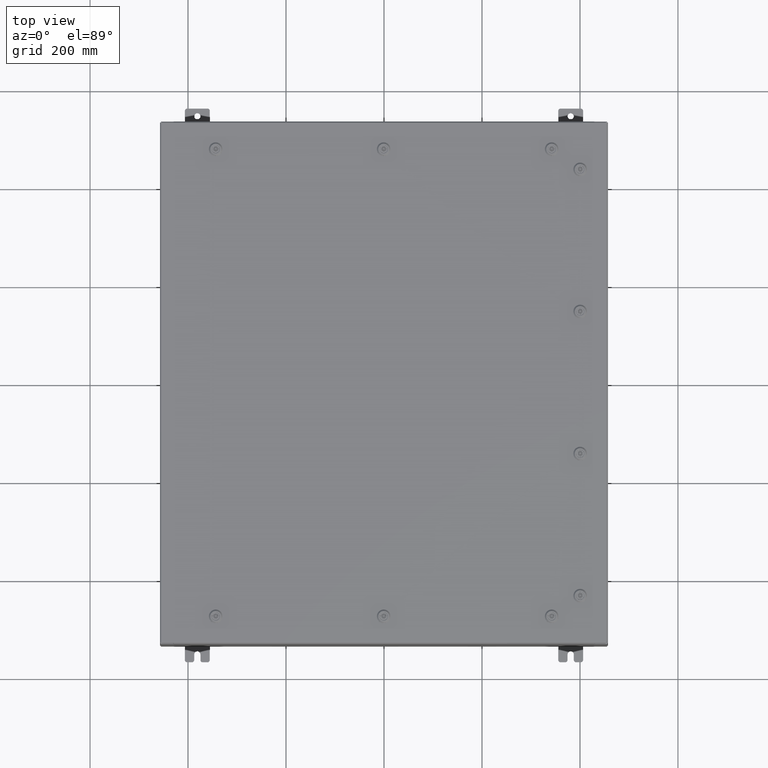
[diagram: clean part render]
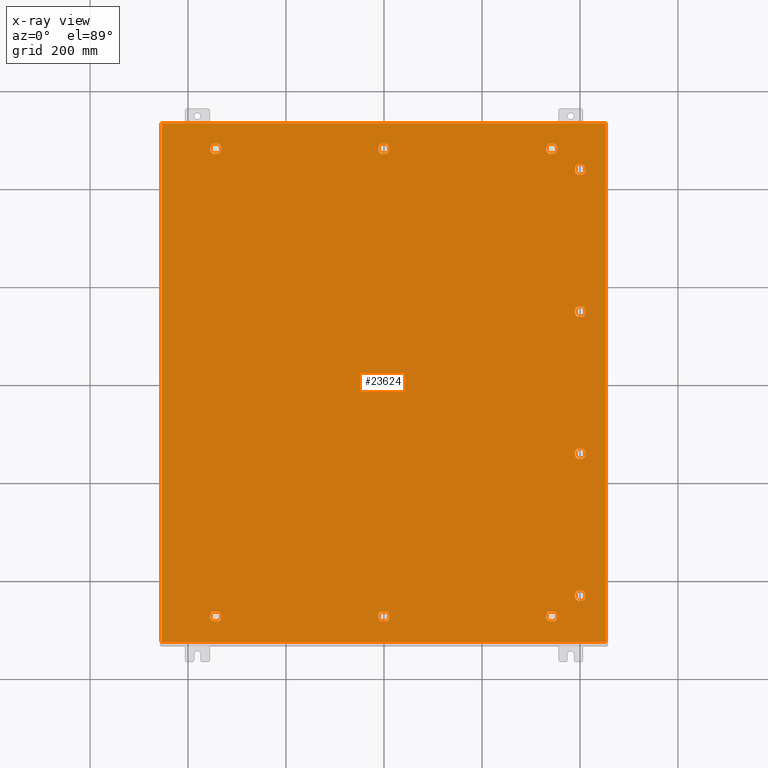
[diagram: x-ray — body ghosted, one internal face saturated and labeled with its STEP entity id]
A machine part, top view, then the same camera in x-ray: the body is ghosted and one INTERNAL B-rep face — a face not visible from any outside direction — is saturated and labeled: STEP entity #23624.
In plain terms, the highlighted planar face has unit normal (0, 0, -1).
Its self-contained STEP definition (entity closure, byte-faithful):
#80 = VERTEX_POINT ( 'NONE', #734 ) ;
#193 = EDGE_CURVE ( 'NONE', #12584, #23892, #28825, .T. ) ;
#390 = VECTOR ( 'NONE', #15010, 39.37007874015748100 ) ;
#453 = AXIS2_PLACEMENT_3D ( 'NONE', #1843, #38882, #7204 ) ;
#551 = CARTESIAN_POINT ( 'NONE',  ( 13.69945237526786900, -19.18279999999999700, -0.07470000000000003000 ) ) ;
#561 = CARTESIAN_POINT ( 'NONE',  ( 17.84979999999999500, -20.84980000000000200, -0.07470000000000000300 ) ) ;
#734 = CARTESIAN_POINT ( 'NONE',  ( -0.1994523752678657700, 19.18279999999999300, -0.07470000000000003000 ) ) ;
#768 = ORIENTED_EDGE ( 'NONE', *, *, #59560, .T. ) ;
#866 = CARTESIAN_POINT ( 'NONE',  ( 13.30054762473209400, 19.18279999999999300, -0.07470000000000003000 ) ) ;
#952 = DIRECTION ( 'NONE',  ( -1.000000000000000000, 0.0000000000000000000, 0.0000000000000000000 ) ) ;
#1178 = EDGE_CURVE ( 'NONE', #3251, #57180, #46143, .T. ) ;
#1322 = FACE_BOUND ( 'NONE', #14052, .T. ) ;
#1347 = CARTESIAN_POINT ( 'NONE',  ( -17.84979999999999800, 20.84980000000000200, -0.07470000000000129300 ) ) ;
#1843 = CARTESIAN_POINT ( 'NONE',  ( 1.529834876451987200E-014, -18.78779999999999700, -0.07470000000000003000 ) ) ;
#1939 = CARTESIAN_POINT ( 'NONE',  ( -13.30054762473210200, 18.39280000000000100, -0.07470000000000003000 ) ) ;
#2352 = VERTEX_POINT ( 'NONE', #37872 ) ;
#2576 = DIRECTION ( 'NONE',  ( -1.000000000000000000, 0.0000000000000000000, 0.0000000000000000000 ) ) ;
#3000 = EDGE_CURVE ( 'NONE', #31051, #3251, #58454, .T. ) ;
#3143 = DIRECTION ( 'NONE',  ( -1.000000000000000000, 0.0000000000000000000, 0.0000000000000000000 ) ) ;
#3191 = VERTEX_POINT ( 'NONE', #21749 ) ;
#3236 = AXIS2_PLACEMENT_3D ( 'NONE', #24119, #61155, #29420 ) ;
#3237 = VECTOR ( 'NONE', #35458, 39.37007874015748100 ) ;
#3251 = VERTEX_POINT ( 'NONE', #16863 ) ;
#3380 = PLANE ( 'NONE',  #66780 ) ;
#3496 = ORIENTED_EDGE ( 'NONE', *, *, #13367, .T. ) ;
#3551 = VECTOR ( 'NONE', #21374, 39.37007874015748100 ) ;
#3881 = EDGE_CURVE ( 'NONE', #16004, #80, #54644, .T. ) ;
#3909 = VECTOR ( 'NONE', #66478, 39.37007874015748100 ) ;
#4025 = AXIS2_PLACEMENT_3D ( 'NONE', #22478, #59516, #27796 ) ;
#4248 = AXIS2_PLACEMENT_3D ( 'NONE', #64449, #32679, #952 ) ;
#4268 = VERTEX_POINT ( 'NONE', #65040 ) ;
#4667 = CIRCLE ( 'NONE', #31220, 0.4424999999999961700 ) ;
#4855 = CARTESIAN_POINT ( 'NONE',  ( 15.78779999999997200, 17.12249999999992400, -0.07470000000000003000 ) ) ;
#4921 = VERTEX_POINT ( 'NONE', #33217 ) ;
#5347 = EDGE_LOOP ( 'NONE', ( #34472, #37090, #46000, #59083 ) ) ;
#5541 = VERTEX_POINT ( 'NONE', #53049 ) ;
#5547 = VECTOR ( 'NONE', #37919, 39.37007874015748100 ) ;
#6015 = CARTESIAN_POINT ( 'NONE',  ( 0.1994523752678993800, -18.39280000000000100, -0.07470000000000003000 ) ) ;
#6030 = EDGE_LOOP ( 'NONE', ( #44376, #59765, #45810, #768, #15175 ) ) ;
#6147 = VERTEX_POINT ( 'NONE', #551 ) ;
#6184 = AXIS2_PLACEMENT_3D ( 'NONE', #54314, #22633, #59667 ) ;
#6667 = DIRECTION ( 'NONE',  ( -1.000000000000000000, 0.0000000000000000000, 0.0000000000000000000 ) ) ;
#6808 = LINE ( 'NONE', #64233, #47338 ) ;
#6891 = LINE ( 'NONE', #53276, #3551 ) ;
#7072 = CARTESIAN_POINT ( 'NONE',  ( 15.78779999999997200, 5.705833333333280200, -0.07470000000000003000 ) ) ;
#7146 = CARTESIAN_POINT ( 'NONE',  ( 13.69945237526787100, -18.39280000000000500, -0.07470000000000003000 ) ) ;
#7204 = DIRECTION ( 'NONE',  ( -1.000000000000000000, 0.0000000000000000000, 0.0000000000000000000 ) ) ;
#7261 = DIRECTION ( 'NONE',  ( -0.0000000000000000000, -0.0000000000000000000, 1.000000000000000000 ) ) ;
#7538 = ORIENTED_EDGE ( 'NONE', *, *, #37289, .T. ) ;
#7640 = EDGE_CURVE ( 'NONE', #11497, #3191, #61863, .T. ) ;
#7688 = DIRECTION ( 'NONE',  ( -1.000000000000000000, 0.0000000000000000000, 0.0000000000000000000 ) ) ;
#7822 = CARTESIAN_POINT ( 'NONE',  ( 13.49999999999998600, -18.78780000000000100, -0.07470000000000003000 ) ) ;
#7877 = VECTOR ( 'NONE', #38383, 39.37007874015748100 ) ;
#8097 = AXIS2_PLACEMENT_3D ( 'NONE', #38934, #7261, #44245 ) ;
#8121 = EDGE_CURVE ( 'NONE', #39548, #33754, #45206, .T. ) ;
#8298 = CARTESIAN_POINT ( 'NONE',  ( 1.529834876451987200E-014, 18.78779999999999700, -0.07470000000000003000 ) ) ;
#8693 = CARTESIAN_POINT ( 'NONE',  ( 15.78779999999997200, 5.705833333333280200, -0.07470000000000003000 ) ) ;
#8712 = DIRECTION ( 'NONE',  ( -1.000000000000000000, 0.0000000000000000000, -0.0000000000000000000 ) ) ;
#9257 = VECTOR ( 'NONE', #28344, 39.37007874015748100 ) ;
#9272 = ORIENTED_EDGE ( 'NONE', *, *, #68685, .T. ) ;
#9658 = EDGE_CURVE ( 'NONE', #37211, #39548, #56709, .T. ) ;
#9901 = CARTESIAN_POINT ( 'NONE',  ( 0.1994523752679067700, -19.18279999999999000, -0.07470000000000003000 ) ) ;
#10008 = VERTEX_POINT ( 'NONE', #54962 ) ;
#10171 = DIRECTION ( 'NONE',  ( -1.000000000000000000, 0.0000000000000000000, 0.0000000000000000000 ) ) ;
#10456 = AXIS2_PLACEMENT_3D ( 'NONE', #19809, #56829, #25133 ) ;
#10503 = ORIENTED_EDGE ( 'NONE', *, *, #9658, .T. ) ;
#10768 = CARTESIAN_POINT ( 'NONE',  ( 15.39279999999998200, -5.910285708601260300, -0.07470000000000003000 ) ) ;
#10794 = VERTEX_POINT ( 'NONE', #6015 ) ;
#10964 = EDGE_CURVE ( 'NONE', #29314, #32702, #60873, .T. ) ;
#11278 = VERTEX_POINT ( 'NONE', #23093 ) ;
#11434 = CARTESIAN_POINT ( 'NONE',  ( -13.30054762473209400, 19.18279999999999000, -0.07470000000000003000 ) ) ;
#11497 = VERTEX_POINT ( 'NONE', #46379 ) ;
#11601 = DIRECTION ( 'NONE',  ( -0.0000000000000000000, -0.0000000000000000000, 1.000000000000000000 ) ) ;
#11766 = CARTESIAN_POINT ( 'NONE',  ( 15.78779999999997200, -5.710833333333369800, -0.07470000000000003000 ) ) ;
#11780 = EDGE_CURVE ( 'NONE', #46576, #4268, #53355, .T. ) ;
#11976 = CARTESIAN_POINT ( 'NONE',  ( 13.30054762473210400, -18.39280000000000500, -0.07470000000000003000 ) ) ;
#12331 = ORIENTED_EDGE ( 'NONE', *, *, #193, .T. ) ;
#12364 = DIRECTION ( 'NONE',  ( -1.000000000000000000, 0.0000000000000000000, 0.0000000000000000000 ) ) ;
#12538 = AXIS2_PLACEMENT_3D ( 'NONE', #22704, #59731, #28014 ) ;
#12584 = VERTEX_POINT ( 'NONE', #32622 ) ;
#12657 = ORIENTED_EDGE ( 'NONE', *, *, #50395, .T. ) ;
#12824 = AXIS2_PLACEMENT_3D ( 'NONE', #7072, #44060, #12364 ) ;
#13120 = DIRECTION ( 'NONE',  ( -1.000000000000000000, 0.0000000000000000000, 0.0000000000000000000 ) ) ;
#13184 = VERTEX_POINT ( 'NONE', #19737 ) ;
#13219 = EDGE_LOOP ( 'NONE', ( #67037, #17417, #15350, #17991, #62679 ) ) ;
#13247 = CARTESIAN_POINT ( 'NONE',  ( 16.18279999999996800, 5.506380958065394200, -0.07470000000000003000 ) ) ;
#13277 = EDGE_CURVE ( 'NONE', #40545, #59435, #33371, .T. ) ;
#13367 = EDGE_CURVE ( 'NONE', #10794, #67055, #6891, .T. ) ;
#13597 = DIRECTION ( 'NONE',  ( -1.000000000000000000, 0.0000000000000000000, 0.0000000000000000000 ) ) ;
#13666 = EDGE_CURVE ( 'NONE', #34534, #2352, #62368, .T. ) ;
#13752 = FACE_OUTER_BOUND ( 'NONE', #66273, .T. ) ;
#13842 = CARTESIAN_POINT ( 'NONE',  ( -17.84980000000000200, -20.84980000000000200, -0.07470000000000000300 ) ) ;
#14003 = DIRECTION ( 'NONE',  ( -1.000000000000000000, 0.0000000000000000000, 0.0000000000000000000 ) ) ;
#14052 = EDGE_LOOP ( 'NONE', ( #46970, #10503, #56533, #34545, #3496 ) ) ;
#14067 = CARTESIAN_POINT ( 'NONE',  ( 15.39279999999997600, -5.511380958065487300, -0.07470000000000003000 ) ) ;
#14117 = CIRCLE ( 'NONE', #36281, 0.4424999999999983400 ) ;
#14308 = AXIS2_PLACEMENT_3D ( 'NONE', #31084, #68174, #36390 ) ;
#14325 = CARTESIAN_POINT ( 'NONE',  ( 16.18279999999996800, -5.910285708601255900, -0.07470000000000003000 ) ) ;
#14440 = LINE ( 'NONE', #21697, #55024 ) ;
#14453 = CARTESIAN_POINT ( 'NONE',  ( 13.30054762473210200, 18.39280000000000500, -0.07470000000000003000 ) ) ;
#14699 = EDGE_CURVE ( 'NONE', #80, #64353, #35764, .T. ) ;
#14707 = CARTESIAN_POINT ( 'NONE',  ( -0.1994523752678689600, -18.39280000000000100, -0.07470000000000003000 ) ) ;
#14799 = VERTEX_POINT ( 'NONE', #42327 ) ;
#14961 = EDGE_LOOP ( 'NONE', ( #9272, #20211, #44586, #19372 ) ) ;
#15010 = DIRECTION ( 'NONE',  ( 1.095739467627835000E-014, -1.000000000000000000, 0.0000000000000000000 ) ) ;
#15175 = ORIENTED_EDGE ( 'NONE', *, *, #29909, .T. ) ;
#15214 = EDGE_CURVE ( 'NONE', #64353, #35681, #28263, .T. ) ;
#15350 = ORIENTED_EDGE ( 'NONE', *, *, #33680, .T. ) ;
#15402 = EDGE_CURVE ( 'NONE', #10008, #52088, #39018, .T. ) ;
#15411 = FACE_BOUND ( 'NONE', #35022, .T. ) ;
#15653 = CIRCLE ( 'NONE', #28403, 0.4424999999999983400 ) ;
#15689 = DIRECTION ( 'NONE',  ( -0.0000000000000000000, -0.0000000000000000000, 1.000000000000000000 ) ) ;
#15779 = CARTESIAN_POINT ( 'NONE',  ( 15.39279999999998200, 16.92304762473203500, -0.07470000000000000300 ) ) ;
#16004 = VERTEX_POINT ( 'NONE', #47052 ) ;
#16135 = VECTOR ( 'NONE', #68052, 39.37007874015748100 ) ;
#16218 = EDGE_CURVE ( 'NONE', #17920, #67663, #14117, .T. ) ;
#16448 = CARTESIAN_POINT ( 'NONE',  ( -13.69945237526787100, -18.39280000000000800, -0.07470000000000003000 ) ) ;
#16785 = VECTOR ( 'NONE', #23071, 39.37007874015748100 ) ;
#16863 = CARTESIAN_POINT ( 'NONE',  ( 15.39279999999997600, 17.32195237526780600, -0.07470000000000003000 ) ) ;
#17004 = EDGE_CURVE ( 'NONE', #14799, #46886, #65391, .T. ) ;
#17077 = DIRECTION ( 'NONE',  ( -1.000000000000000000, 0.0000000000000000000, 0.0000000000000000000 ) ) ;
#17082 = FACE_BOUND ( 'NONE', #27344, .T. ) ;
#17325 = LINE ( 'NONE', #67227, #3237 ) ;
#17397 = ORIENTED_EDGE ( 'NONE', *, *, #18330, .T. ) ;
#17417 = ORIENTED_EDGE ( 'NONE', *, *, #28820, .T. ) ;
#17894 = ORIENTED_EDGE ( 'NONE', *, *, #13277, .T. ) ;
#17920 = VERTEX_POINT ( 'NONE', #60294 ) ;
#17991 = ORIENTED_EDGE ( 'NONE', *, *, #37504, .T. ) ;
#18121 = CARTESIAN_POINT ( 'NONE',  ( 15.78779999999997200, -17.12750000000001900, -0.07470000000000003000 ) ) ;
#18330 = EDGE_CURVE ( 'NONE', #40990, #60419, #15653, .T. ) ;
#19076 = DIRECTION ( 'NONE',  ( 5.478697338139235000E-015, 1.000000000000000000, 0.0000000000000000000 ) ) ;
#19297 = VECTOR ( 'NONE', #37074, 39.37007874015748100 ) ;
#19372 = ORIENTED_EDGE ( 'NONE', *, *, #30451, .T. ) ;
#19405 = VECTOR ( 'NONE', #19076, 39.37007874015748100 ) ;
#19630 = LINE ( 'NONE', #866, #5547 ) ;
#19737 = CARTESIAN_POINT ( 'NONE',  ( 13.94249999999998500, -18.78780000000000100, -0.07470000000000003000 ) ) ;
#19789 = CARTESIAN_POINT ( 'NONE',  ( 17.84979999999999500, 20.84980000000000200, -0.07470000000000000300 ) ) ;
#19809 = CARTESIAN_POINT ( 'NONE',  ( -13.49999999999998600, 18.78779999999999700, -0.07470000000000003000 ) ) ;
#19903 = DIRECTION ( 'NONE',  ( 1.000000000000000000, -1.095739467627832000E-014, 0.0000000000000000000 ) ) ;
#20199 = CARTESIAN_POINT ( 'NONE',  ( -13.30054762473210400, -18.39280000000000800, -0.07470000000000003000 ) ) ;
#20211 = ORIENTED_EDGE ( 'NONE', *, *, #24959, .T. ) ;
#20299 = EDGE_CURVE ( 'NONE', #57180, #48181, #58584, .T. ) ;
#20700 = CARTESIAN_POINT ( 'NONE',  ( -13.05749999999998900, 18.78779999999999700, -0.07470000000000003000 ) ) ;
#21041 = VECTOR ( 'NONE', #31691, 39.37007874015748100 ) ;
#21155 = LINE ( 'NONE', #46707, #390 ) ;
#21374 = DIRECTION ( 'NONE',  ( -1.000000000000000000, 0.0000000000000000000, 0.0000000000000000000 ) ) ;
#21697 = CARTESIAN_POINT ( 'NONE',  ( 16.18279999999996800, 16.92304762473203900, -0.07470000000000003000 ) ) ;
#21749 = CARTESIAN_POINT ( 'NONE',  ( 16.18279999999996800, -17.32695237526790400, -0.07470000000000003000 ) ) ;
#21846 = DIRECTION ( 'NONE',  ( 5.478697338139219300E-015, 1.000000000000000000, 0.0000000000000000000 ) ) ;
#22187 = CARTESIAN_POINT ( 'NONE',  ( 17.84979999999999500, 20.84980000000000500, -0.07469999999999804600 ) ) ;
#22340 = EDGE_CURVE ( 'NONE', #13184, #34534, #39370, .T. ) ;
#22478 = CARTESIAN_POINT ( 'NONE',  ( 1.529834876451987200E-014, -18.78779999999999700, -0.07470000000000003000 ) ) ;
#22633 = DIRECTION ( 'NONE',  ( -0.0000000000000000000, -0.0000000000000000000, 1.000000000000000000 ) ) ;
#22670 = CARTESIAN_POINT ( 'NONE',  ( 0.1994523752679070700, -19.18279999999999000, -0.07470000000000000300 ) ) ;
#22704 = CARTESIAN_POINT ( 'NONE',  ( 13.49999999999998600, -18.78780000000000100, -0.07470000000000003000 ) ) ;
#22718 = CARTESIAN_POINT ( 'NONE',  ( 16.18279999999996800, -5.910285708601255900, -0.07470000000000003000 ) ) ;
#23071 = DIRECTION ( 'NONE',  ( 1.000000000000000000, 0.0000000000000000000, 0.0000000000000000000 ) ) ;
#23093 = CARTESIAN_POINT ( 'NONE',  ( 15.39279999999997600, -16.92804762473213700, -0.07470000000000003000 ) ) ;
#23306 = CARTESIAN_POINT ( 'NONE',  ( 0.1994523752679067700, 19.18279999999999000, -0.07470000000000003000 ) ) ;
#23467 = DIRECTION ( 'NONE',  ( -1.000000000000000000, 0.0000000000000000000, 0.0000000000000000000 ) ) ;
#23541 = EDGE_CURVE ( 'NONE', #23551, #12584, #4667, .T. ) ;
#23551 = VERTEX_POINT ( 'NONE', #24231 ) ;
#23624 = ADVANCED_FACE ( 'NONE', ( #17082, #43565, #48537, #61011, #29506, #15411, #1322, #55996, #41899, #27850, #13752 ), #3380, .T. ) ;
#23892 = VERTEX_POINT ( 'NONE', #37349 ) ;
#24052 = EDGE_CURVE ( 'NONE', #46886, #31702, #55146, .T. ) ;
#24119 = CARTESIAN_POINT ( 'NONE',  ( 13.49999999999998600, -18.78780000000000100, -0.07470000000000003000 ) ) ;
#24144 = CIRCLE ( 'NONE', #14308, 0.4424999999999983400 ) ;
#24231 = CARTESIAN_POINT ( 'NONE',  ( 13.69945237526786900, 18.39280000000000500, -0.07470000000000003000 ) ) ;
#24609 = CARTESIAN_POINT ( 'NONE',  ( 15.78779999999997200, 17.12249999999992400, -0.07470000000000003000 ) ) ;
#24627 = VERTEX_POINT ( 'NONE', #14325 ) ;
#24958 = CARTESIAN_POINT ( 'NONE',  ( 0.1994523752678995500, 18.39280000000000100, -0.07470000000000003000 ) ) ;
#24959 = EDGE_CURVE ( 'NONE', #54788, #17920, #21155, .T. ) ;
#25133 = DIRECTION ( 'NONE',  ( -1.000000000000000000, 0.0000000000000000000, 0.0000000000000000000 ) ) ;
#25607 = CARTESIAN_POINT ( 'NONE',  ( -13.05749999999999000, -18.78780000000000400, -0.07470000000000003000 ) ) ;
#25754 = EDGE_CURVE ( 'NONE', #4268, #32452, #47548, .T. ) ;
#25875 = ORIENTED_EDGE ( 'NONE', *, *, #14699, .T. ) ;
#26381 = AXIS2_PLACEMENT_3D ( 'NONE', #7822, #44818, #13120 ) ;
#26737 = DIRECTION ( 'NONE',  ( 1.095739467627835000E-014, -1.000000000000000000, 0.0000000000000000000 ) ) ;
#27025 = DIRECTION ( 'NONE',  ( 5.478697338139219300E-015, 1.000000000000000000, 0.0000000000000000000 ) ) ;
#27106 = CARTESIAN_POINT ( 'NONE',  ( 1.529834876451987200E-014, -18.78779999999999700, -0.07470000000000003000 ) ) ;
#27344 = EDGE_LOOP ( 'NONE', ( #41278, #46867, #47482, #33881 ) ) ;
#27570 = AXIS2_PLACEMENT_3D ( 'NONE', #27106, #11601, #7688 ) ;
#27796 = DIRECTION ( 'NONE',  ( -1.000000000000000000, 0.0000000000000000000, 0.0000000000000000000 ) ) ;
#27850 = FACE_BOUND ( 'NONE', #56121, .T. ) ;
#28014 = DIRECTION ( 'NONE',  ( -1.000000000000000000, 0.0000000000000000000, 0.0000000000000000000 ) ) ;
#28205 = CARTESIAN_POINT ( 'NONE',  ( 15.78779999999997200, -17.12750000000001900, -0.07470000000000003000 ) ) ;
#28263 = LINE ( 'NONE', #24958, #42320 ) ;
#28344 = DIRECTION ( 'NONE',  ( 1.000000000000000000, 0.0000000000000000000, 0.0000000000000000000 ) ) ;
#28371 = VERTEX_POINT ( 'NONE', #19789 ) ;
#28403 = AXIS2_PLACEMENT_3D ( 'NONE', #47373, #15689, #52701 ) ;
#28702 = EDGE_CURVE ( 'NONE', #67608, #11278, #40709, .T. ) ;
#28820 = EDGE_CURVE ( 'NONE', #32452, #37554, #63962, .T. ) ;
#28825 = CIRCLE ( 'NONE', #55370, 0.4424999999999961700 ) ;
#28843 = CARTESIAN_POINT ( 'NONE',  ( -13.49999999999998600, -18.78780000000000400, -0.07470000000000003000 ) ) ;
#28995 = ORIENTED_EDGE ( 'NONE', *, *, #60619, .T. ) ;
#29314 = VERTEX_POINT ( 'NONE', #47474 ) ;
#29420 = DIRECTION ( 'NONE',  ( -1.000000000000000000, 0.0000000000000000000, 0.0000000000000000000 ) ) ;
#29506 = FACE_BOUND ( 'NONE', #6030, .T. ) ;
#29531 = CARTESIAN_POINT ( 'NONE',  ( -0.1994523752678689600, 18.39280000000000100, -0.07470000000000003000 ) ) ;
#29903 = DIRECTION ( 'NONE',  ( -1.000000000000000000, 0.0000000000000000000, 0.0000000000000000000 ) ) ;
#29909 = EDGE_CURVE ( 'NONE', #49626, #6147, #65875, .T. ) ;
#30117 = AXIS2_PLACEMENT_3D ( 'NONE', #66076, #34283, #2576 ) ;
#30405 = DIRECTION ( 'NONE',  ( 1.095739467627837900E-014, -1.000000000000000000, 0.0000000000000000000 ) ) ;
#30451 = EDGE_CURVE ( 'NONE', #67663, #4921, #45875, .T. ) ;
#30938 = AXIS2_PLACEMENT_3D ( 'NONE', #62995, #31247, #68334 ) ;
#31051 = VERTEX_POINT ( 'NONE', #54905 ) ;
#31084 = CARTESIAN_POINT ( 'NONE',  ( -13.49999999999998600, 18.78779999999999700, -0.07470000000000003000 ) ) ;
#31220 = AXIS2_PLACEMENT_3D ( 'NONE', #66631, #34841, #3143 ) ;
#31247 = DIRECTION ( 'NONE',  ( -0.0000000000000000000, -0.0000000000000000000, 1.000000000000000000 ) ) ;
#31389 = CARTESIAN_POINT ( 'NONE',  ( -13.49999999999998600, -18.78780000000000400, -0.07470000000000003000 ) ) ;
#31691 = DIRECTION ( 'NONE',  ( 0.0000000000000000000, 1.000000000000000000, 0.0000000000000000000 ) ) ;
#31702 = VERTEX_POINT ( 'NONE', #48478 ) ;
#31847 = ORIENTED_EDGE ( 'NONE', *, *, #10964, .F. ) ;
#32022 = CARTESIAN_POINT ( 'NONE',  ( -13.30054762473209500, -19.18279999999999700, -0.07470000000000003000 ) ) ;
#32452 = VERTEX_POINT ( 'NONE', #38640 ) ;
#32622 = CARTESIAN_POINT ( 'NONE',  ( 13.94249999999998300, 18.78780000000000100, -0.07470000000000003000 ) ) ;
#32679 = DIRECTION ( 'NONE',  ( -0.0000000000000000000, -0.0000000000000000000, 1.000000000000000000 ) ) ;
#32702 = VERTEX_POINT ( 'NONE', #13842 ) ;
#33048 = EDGE_CURVE ( 'NONE', #3191, #67608, #6808, .T. ) ;
#33058 = AXIS2_PLACEMENT_3D ( 'NONE', #28843, #65926, #34143 ) ;
#33217 = CARTESIAN_POINT ( 'NONE',  ( 16.18279999999997200, 5.905285708601162800, -0.07470000000000003000 ) ) ;
#33371 = LINE ( 'NONE', #20199, #19297 ) ;
#33504 = VECTOR ( 'NONE', #37324, 39.37007874015748100 ) ;
#33515 = DIRECTION ( 'NONE',  ( -1.000000000000000000, 0.0000000000000000000, 0.0000000000000000000 ) ) ;
#33566 = CIRCLE ( 'NONE', #12538, 0.4424999999999961700 ) ;
#33680 = EDGE_CURVE ( 'NONE', #37554, #39339, #24144, .T. ) ;
#33754 = VERTEX_POINT ( 'NONE', #43749 ) ;
#33881 = ORIENTED_EDGE ( 'NONE', *, *, #53188, .T. ) ;
#33908 = DIRECTION ( 'NONE',  ( -1.000000000000000000, 1.095739467627836300E-014, 0.0000000000000000000 ) ) ;
#33934 = CIRCLE ( 'NONE', #453, 0.4424999999999969000 ) ;
#34143 = DIRECTION ( 'NONE',  ( -1.000000000000000000, 0.0000000000000000000, 0.0000000000000000000 ) ) ;
#34152 = VECTOR ( 'NONE', #6667, 39.37007874015748100 ) ;
#34283 = DIRECTION ( 'NONE',  ( -0.0000000000000000000, -0.0000000000000000000, 1.000000000000000000 ) ) ;
#34472 = ORIENTED_EDGE ( 'NONE', *, *, #28702, .T. ) ;
#34534 = VERTEX_POINT ( 'NONE', #7146 ) ;
#34545 = ORIENTED_EDGE ( 'NONE', *, *, #44988, .T. ) ;
#34599 = CIRCLE ( 'NONE', #37361, 0.4424999999999983400 ) ;
#34841 = DIRECTION ( 'NONE',  ( -0.0000000000000000000, -0.0000000000000000000, 1.000000000000000000 ) ) ;
#35022 = EDGE_LOOP ( 'NONE', ( #60513, #28995, #57078, #7538, #17894 ) ) ;
#35458 = DIRECTION ( 'NONE',  ( 1.000000000000000000, -0.0000000000000000000, -0.0000000000000000000 ) ) ;
#35681 = VERTEX_POINT ( 'NONE', #56326 ) ;
#35764 = CIRCLE ( 'NONE', #30938, 0.4424999999999969000 ) ;
#35983 = CARTESIAN_POINT ( 'NONE',  ( -13.30054762473210200, 18.39280000000000100, -0.07470000000000000300 ) ) ;
#36201 = EDGE_CURVE ( 'NONE', #6147, #13184, #65435, .T. ) ;
#36281 = AXIS2_PLACEMENT_3D ( 'NONE', #8693, #45691, #14003 ) ;
#36297 = ORIENTED_EDGE ( 'NONE', *, *, #3881, .T. ) ;
#36390 = DIRECTION ( 'NONE',  ( -1.000000000000000000, 0.0000000000000000000, 0.0000000000000000000 ) ) ;
#36493 = VERTEX_POINT ( 'NONE', #561 ) ;
#36499 = ORIENTED_EDGE ( 'NONE', *, *, #17004, .T. ) ;
#36515 = ORIENTED_EDGE ( 'NONE', *, *, #45012, .T. ) ;
#36553 = VERTEX_POINT ( 'NONE', #37605 ) ;
#36698 = DIRECTION ( 'NONE',  ( -1.000000000000000000, 0.0000000000000000000, 0.0000000000000000000 ) ) ;
#37074 = DIRECTION ( 'NONE',  ( -1.000000000000000000, 0.0000000000000000000, 0.0000000000000000000 ) ) ;
#37090 = ORIENTED_EDGE ( 'NONE', *, *, #62495, .T. ) ;
#37211 = VERTEX_POINT ( 'NONE', #60120 ) ;
#37289 = EDGE_CURVE ( 'NONE', #52088, #40545, #65375, .T. ) ;
#37324 = DIRECTION ( 'NONE',  ( 1.000000000000000000, 1.095739467627832000E-014, 0.0000000000000000000 ) ) ;
#37349 = CARTESIAN_POINT ( 'NONE',  ( 13.69945237526786700, 19.18279999999999700, -0.07470000000000003000 ) ) ;
#37361 = AXIS2_PLACEMENT_3D ( 'NONE', #11766, #48766, #17077 ) ;
#37504 = EDGE_CURVE ( 'NONE', #39339, #46576, #57003, .T. ) ;
#37554 = VERTEX_POINT ( 'NONE', #35983 ) ;
#37605 = CARTESIAN_POINT ( 'NONE',  ( 0.4425000000000126100, 18.78779999999999700, -0.07470000000000003000 ) ) ;
#37872 = CARTESIAN_POINT ( 'NONE',  ( 13.30054762473210400, -18.39280000000000500, -0.07470000000000000300 ) ) ;
#37919 = DIRECTION ( 'NONE',  ( -1.000000000000000000, -1.095739467627832000E-014, 0.0000000000000000000 ) ) ;
#38383 = DIRECTION ( 'NONE',  ( 0.0000000000000000000, -1.000000000000000000, 0.0000000000000000000 ) ) ;
#38640 = CARTESIAN_POINT ( 'NONE',  ( -13.69945237526786900, 18.39280000000000100, -0.07470000000000003000 ) ) ;
#38695 = DIRECTION ( 'NONE',  ( -0.0000000000000000000, -0.0000000000000000000, 1.000000000000000000 ) ) ;
#38882 = DIRECTION ( 'NONE',  ( -0.0000000000000000000, -0.0000000000000000000, 1.000000000000000000 ) ) ;
#38885 = ORIENTED_EDGE ( 'NONE', *, *, #64337, .T. ) ;
#38934 = CARTESIAN_POINT ( 'NONE',  ( 1.529834876451987200E-014, 18.78779999999999700, -0.07470000000000003000 ) ) ;
#39018 = CIRCLE ( 'NONE', #46016, 0.4424999999999961700 ) ;
#39278 = VECTOR ( 'NONE', #64475, 39.37007874015748100 ) ;
#39339 = VERTEX_POINT ( 'NONE', #20700 ) ;
#39370 = CIRCLE ( 'NONE', #3236, 0.4424999999999983400 ) ;
#39548 = VERTEX_POINT ( 'NONE', #22670 ) ;
#39814 = CIRCLE ( 'NONE', #12824, 0.4424999999999983400 ) ;
#40175 = DIRECTION ( 'NONE',  ( 0.0000000000000000000, 0.0000000000000000000, -1.000000000000000000 ) ) ;
#40545 = VERTEX_POINT ( 'NONE', #60977 ) ;
#40580 = VECTOR ( 'NONE', #59745, 39.37007874015748100 ) ;
#40709 = CIRCLE ( 'NONE', #63809, 0.4424999999999983400 ) ;
#40798 = LINE ( 'NONE', #62149, #67377 ) ;
#40990 = VERTEX_POINT ( 'NONE', #60648 ) ;
#41044 = VECTOR ( 'NONE', #26737, 39.37007874015748100 ) ;
#41278 = ORIENTED_EDGE ( 'NONE', *, *, #3000, .T. ) ;
#41445 = CARTESIAN_POINT ( 'NONE',  ( 15.39279999999997600, 5.905285708601162800, -0.07470000000000003000 ) ) ;
#41845 = EDGE_LOOP ( 'NONE', ( #36499, #45574, #61377, #36515 ) ) ;
#41862 = DIRECTION ( 'NONE',  ( -0.0000000000000000000, -0.0000000000000000000, 1.000000000000000000 ) ) ;
#41899 = FACE_BOUND ( 'NONE', #13219, .T. ) ;
#42095 = CIRCLE ( 'NONE', #8097, 0.4424999999999973400 ) ;
#42320 = VECTOR ( 'NONE', #51300, 39.37007874015748100 ) ;
#42327 = CARTESIAN_POINT ( 'NONE',  ( 16.18279999999997200, -5.511380958065487300, -0.07470000000000003000 ) ) ;
#42576 = ORIENTED_EDGE ( 'NONE', *, *, #23541, .T. ) ;
#43205 = ORIENTED_EDGE ( 'NONE', *, *, #66285, .T. ) ;
#43565 = FACE_BOUND ( 'NONE', #14961, .T. ) ;
#43749 = CARTESIAN_POINT ( 'NONE',  ( 0.4425000000000126100, -18.78779999999999700, -0.07470000000000003000 ) ) ;
#44060 = DIRECTION ( 'NONE',  ( -0.0000000000000000000, -0.0000000000000000000, 1.000000000000000000 ) ) ;
#44245 = DIRECTION ( 'NONE',  ( -1.000000000000000000, 4.938934225833725800E-015, 0.0000000000000000000 ) ) ;
#44376 = ORIENTED_EDGE ( 'NONE', *, *, #36201, .T. ) ;
#44489 = CARTESIAN_POINT ( 'NONE',  ( 16.18279999999997200, -16.92804762473213400, -0.07470000000000003000 ) ) ;
#44586 = ORIENTED_EDGE ( 'NONE', *, *, #16218, .T. ) ;
#44818 = DIRECTION ( 'NONE',  ( -0.0000000000000000000, -0.0000000000000000000, 1.000000000000000000 ) ) ;
#44988 = EDGE_CURVE ( 'NONE', #33754, #10794, #65490, .T. ) ;
#45012 = EDGE_CURVE ( 'NONE', #24627, #14799, #63811, .T. ) ;
#45083 = EDGE_CURVE ( 'NONE', #67055, #37211, #33934, .T. ) ;
#45206 = CIRCLE ( 'NONE', #27570, 0.4424999999999973400 ) ;
#45301 = DIRECTION ( 'NONE',  ( -0.0000000000000000000, -0.0000000000000000000, 1.000000000000000000 ) ) ;
#45574 = ORIENTED_EDGE ( 'NONE', *, *, #24052, .T. ) ;
#45691 = DIRECTION ( 'NONE',  ( -0.0000000000000000000, -0.0000000000000000000, 1.000000000000000000 ) ) ;
#45810 = ORIENTED_EDGE ( 'NONE', *, *, #13666, .T. ) ;
#45875 = LINE ( 'NONE', #56101, #19405 ) ;
#46000 = ORIENTED_EDGE ( 'NONE', *, *, #7640, .T. ) ;
#46016 = AXIS2_PLACEMENT_3D ( 'NONE', #31389, #68491, #36698 ) ;
#46143 = LINE ( 'NONE', #61343, #3909 ) ;
#46379 = CARTESIAN_POINT ( 'NONE',  ( 15.39279999999998200, -17.32695237526790800, -0.07470000000000000300 ) ) ;
#46576 = VERTEX_POINT ( 'NONE', #47100 ) ;
#46706 = EDGE_CURVE ( 'NONE', #36553, #16004, #42095, .T. ) ;
#46707 = CARTESIAN_POINT ( 'NONE',  ( 15.39279999999998200, 5.506380958065389700, -0.07470000000000003000 ) ) ;
#46867 = ORIENTED_EDGE ( 'NONE', *, *, #1178, .T. ) ;
#46886 = VERTEX_POINT ( 'NONE', #14067 ) ;
#46970 = ORIENTED_EDGE ( 'NONE', *, *, #45083, .T. ) ;
#47052 = CARTESIAN_POINT ( 'NONE',  ( 0.1994523752679069900, 19.18279999999999000, -0.07470000000000003000 ) ) ;
#47100 = CARTESIAN_POINT ( 'NONE',  ( -13.30054762473209400, 19.18279999999999000, -0.07470000000000003000 ) ) ;
#47338 = VECTOR ( 'NONE', #21846, 39.37007874015748100 ) ;
#47373 = CARTESIAN_POINT ( 'NONE',  ( 13.49999999999998600, 18.78780000000000100, -0.07470000000000003000 ) ) ;
#47474 = CARTESIAN_POINT ( 'NONE',  ( -17.84979999999999800, 20.84980000000000200, -0.07470000000000000300 ) ) ;
#47482 = ORIENTED_EDGE ( 'NONE', *, *, #20299, .T. ) ;
#47505 = EDGE_CURVE ( 'NONE', #28371, #29314, #48675, .T. ) ;
#47531 = EDGE_CURVE ( 'NONE', #31702, #24627, #34599, .T. ) ;
#47548 = CIRCLE ( 'NONE', #4248, 0.4424999999999961700 ) ;
#48181 = VERTEX_POINT ( 'NONE', #63349 ) ;
#48478 = CARTESIAN_POINT ( 'NONE',  ( 15.39279999999998200, -5.910285708601261200, -0.07470000000000000300 ) ) ;
#48537 = FACE_BOUND ( 'NONE', #41845, .T. ) ;
#48675 = LINE ( 'NONE', #22187, #62814 ) ;
#48744 = EDGE_LOOP ( 'NONE', ( #42576, #12331, #12657, #17397, #38885 ) ) ;
#48766 = DIRECTION ( 'NONE',  ( -0.0000000000000000000, -0.0000000000000000000, 1.000000000000000000 ) ) ;
#49157 = LINE ( 'NONE', #63446, #21041 ) ;
#49408 = CARTESIAN_POINT ( 'NONE',  ( 13.30054762473210200, 18.39280000000000500, -0.07470000000000003000 ) ) ;
#49626 = VERTEX_POINT ( 'NONE', #62470 ) ;
#49950 = CIRCLE ( 'NONE', #6184, 0.4424999999999983400 ) ;
#50065 = VECTOR ( 'NONE', #19903, 39.37007874015748100 ) ;
#50174 = AXIS2_PLACEMENT_3D ( 'NONE', #24609, #61631, #29903 ) ;
#50287 = ORIENTED_EDGE ( 'NONE', *, *, #15214, .T. ) ;
#50395 = EDGE_CURVE ( 'NONE', #23892, #40990, #19630, .T. ) ;
#50705 = ORIENTED_EDGE ( 'NONE', *, *, #61328, .F. ) ;
#51229 = DIRECTION ( 'NONE',  ( -1.000000000000000000, 0.0000000000000000000, 0.0000000000000000000 ) ) ;
#51300 = DIRECTION ( 'NONE',  ( 1.000000000000000000, 0.0000000000000000000, 0.0000000000000000000 ) ) ;
#52003 = ORIENTED_EDGE ( 'NONE', *, *, #47505, .F. ) ;
#52088 = VERTEX_POINT ( 'NONE', #25607 ) ;
#52701 = DIRECTION ( 'NONE',  ( -1.000000000000000000, 0.0000000000000000000, 0.0000000000000000000 ) ) ;
#53049 = CARTESIAN_POINT ( 'NONE',  ( -13.69945237526786900, -19.18280000000000000, -0.07470000000000003000 ) ) ;
#53188 = EDGE_CURVE ( 'NONE', #48181, #31051, #14440, .T. ) ;
#53276 = CARTESIAN_POINT ( 'NONE',  ( 0.1994523752678995500, -18.39280000000000100, -0.07470000000000003000 ) ) ;
#53355 = LINE ( 'NONE', #11434, #39278 ) ;
#53873 = DIRECTION ( 'NONE',  ( -1.000000000000000000, -0.0000000000000000000, -0.0000000000000000000 ) ) ;
#53993 = AXIS2_PLACEMENT_3D ( 'NONE', #8298, #45301, #13597 ) ;
#54314 = CARTESIAN_POINT ( 'NONE',  ( -13.49999999999998600, -18.78780000000000400, -0.07470000000000003000 ) ) ;
#54456 = EDGE_CURVE ( 'NONE', #59435, #5541, #49950, .T. ) ;
#54644 = LINE ( 'NONE', #23306, #65472 ) ;
#54788 = VERTEX_POINT ( 'NONE', #41445 ) ;
#54905 = CARTESIAN_POINT ( 'NONE',  ( 16.18279999999997200, 17.32195237526780900, -0.07470000000000003000 ) ) ;
#54962 = CARTESIAN_POINT ( 'NONE',  ( -13.30054762473209500, -19.18279999999999700, -0.07470000000000000300 ) ) ;
#55024 = VECTOR ( 'NONE', #27025, 39.37007874015748100 ) ;
#55146 = LINE ( 'NONE', #10768, #41044 ) ;
#55151 = DIRECTION ( 'NONE',  ( -0.0000000000000000000, -0.0000000000000000000, 1.000000000000000000 ) ) ;
#55370 = AXIS2_PLACEMENT_3D ( 'NONE', #65681, #38695, #51229 ) ;
#55458 = ORIENTED_EDGE ( 'NONE', *, *, #68388, .F. ) ;
#55996 = FACE_BOUND ( 'NONE', #48744, .T. ) ;
#56101 = CARTESIAN_POINT ( 'NONE',  ( 16.18279999999996800, 5.506380958065394200, -0.07470000000000003000 ) ) ;
#56121 = EDGE_LOOP ( 'NONE', ( #25875, #50287, #43205, #61270, #36297 ) ) ;
#56326 = CARTESIAN_POINT ( 'NONE',  ( 0.1994523752678995500, 18.39280000000000100, -0.07470000000000000300 ) ) ;
#56533 = ORIENTED_EDGE ( 'NONE', *, *, #8121, .T. ) ;
#56709 = LINE ( 'NONE', #9901, #16135 ) ;
#56829 = DIRECTION ( 'NONE',  ( -0.0000000000000000000, -0.0000000000000000000, 1.000000000000000000 ) ) ;
#57003 = CIRCLE ( 'NONE', #10456, 0.4424999999999983400 ) ;
#57078 = ORIENTED_EDGE ( 'NONE', *, *, #15402, .T. ) ;
#57180 = VERTEX_POINT ( 'NONE', #15779 ) ;
#58363 = LINE ( 'NONE', #32022, #33504 ) ;
#58454 = CIRCLE ( 'NONE', #63935, 0.4424999999999983400 ) ;
#58584 = CIRCLE ( 'NONE', #50174, 0.4424999999999961700 ) ;
#58608 = AXIS2_PLACEMENT_3D ( 'NONE', #18121, #55151, #23467 ) ;
#59057 = LINE ( 'NONE', #49408, #16785 ) ;
#59083 = ORIENTED_EDGE ( 'NONE', *, *, #33048, .T. ) ;
#59435 = VERTEX_POINT ( 'NONE', #16448 ) ;
#59516 = DIRECTION ( 'NONE',  ( -0.0000000000000000000, -0.0000000000000000000, 1.000000000000000000 ) ) ;
#59560 = EDGE_CURVE ( 'NONE', #2352, #49626, #33566, .T. ) ;
#59667 = DIRECTION ( 'NONE',  ( -1.000000000000000000, 0.0000000000000000000, 0.0000000000000000000 ) ) ;
#59731 = DIRECTION ( 'NONE',  ( -0.0000000000000000000, -0.0000000000000000000, 1.000000000000000000 ) ) ;
#59745 = DIRECTION ( 'NONE',  ( 5.478697338139235000E-015, 1.000000000000000000, 0.0000000000000000000 ) ) ;
#59765 = ORIENTED_EDGE ( 'NONE', *, *, #22340, .T. ) ;
#60120 = CARTESIAN_POINT ( 'NONE',  ( -0.1994523752678657700, -19.18279999999999300, -0.07470000000000003000 ) ) ;
#60294 = CARTESIAN_POINT ( 'NONE',  ( 15.39279999999998200, 5.506380958065388900, -0.07470000000000000300 ) ) ;
#60419 = VERTEX_POINT ( 'NONE', #14453 ) ;
#60513 = ORIENTED_EDGE ( 'NONE', *, *, #54456, .T. ) ;
#60619 = EDGE_CURVE ( 'NONE', #5541, #10008, #58363, .T. ) ;
#60648 = CARTESIAN_POINT ( 'NONE',  ( 13.30054762473209400, 19.18279999999999300, -0.07470000000000000300 ) ) ;
#60873 = LINE ( 'NONE', #1347, #7877 ) ;
#60977 = CARTESIAN_POINT ( 'NONE',  ( -13.30054762473210400, -18.39280000000000800, -0.07470000000000003000 ) ) ;
#61011 = FACE_BOUND ( 'NONE', #5347, .T. ) ;
#61155 = DIRECTION ( 'NONE',  ( -0.0000000000000000000, -0.0000000000000000000, 1.000000000000000000 ) ) ;
#61270 = ORIENTED_EDGE ( 'NONE', *, *, #46706, .T. ) ;
#61328 = EDGE_CURVE ( 'NONE', #36493, #28371, #49157, .T. ) ;
#61343 = CARTESIAN_POINT ( 'NONE',  ( 15.39279999999998200, 16.92304762473203500, -0.07470000000000003000 ) ) ;
#61377 = ORIENTED_EDGE ( 'NONE', *, *, #47531, .T. ) ;
#61631 = DIRECTION ( 'NONE',  ( -0.0000000000000000000, -0.0000000000000000000, 1.000000000000000000 ) ) ;
#61863 = CIRCLE ( 'NONE', #58608, 0.4424999999999961700 ) ;
#62149 = CARTESIAN_POINT ( 'NONE',  ( 15.39279999999998200, -17.32695237526790800, -0.07470000000000003000 ) ) ;
#62368 = LINE ( 'NONE', #11976, #34152 ) ;
#62470 = CARTESIAN_POINT ( 'NONE',  ( 13.30054762473209500, -19.18279999999999300, -0.07470000000000003000 ) ) ;
#62495 = EDGE_CURVE ( 'NONE', #11278, #11497, #40798, .T. ) ;
#62679 = ORIENTED_EDGE ( 'NONE', *, *, #11780, .T. ) ;
#62814 = VECTOR ( 'NONE', #53873, 39.37007874015748100 ) ;
#62995 = CARTESIAN_POINT ( 'NONE',  ( 1.529834876451987200E-014, 18.78779999999999700, -0.07470000000000003000 ) ) ;
#63349 = CARTESIAN_POINT ( 'NONE',  ( 16.18279999999996800, 16.92304762473203900, -0.07470000000000003000 ) ) ;
#63446 = CARTESIAN_POINT ( 'NONE',  ( 17.84979999999999500, -20.84980000000000200, -0.07470000000000019700 ) ) ;
#63809 = AXIS2_PLACEMENT_3D ( 'NONE', #28205, #65299, #33515 ) ;
#63811 = LINE ( 'NONE', #22718, #40580 ) ;
#63935 = AXIS2_PLACEMENT_3D ( 'NONE', #4855, #41862, #10171 ) ;
#63962 = LINE ( 'NONE', #1939, #9257 ) ;
#64233 = CARTESIAN_POINT ( 'NONE',  ( 16.18279999999996800, -17.32695237526790400, -0.07470000000000003000 ) ) ;
#64337 = EDGE_CURVE ( 'NONE', #60419, #23551, #59057, .T. ) ;
#64353 = VERTEX_POINT ( 'NONE', #29531 ) ;
#64449 = CARTESIAN_POINT ( 'NONE',  ( -13.49999999999998600, 18.78779999999999700, -0.07470000000000003000 ) ) ;
#64475 = DIRECTION ( 'NONE',  ( -1.000000000000000000, 1.095739467627832000E-014, 0.0000000000000000000 ) ) ;
#65040 = CARTESIAN_POINT ( 'NONE',  ( -13.69945237526786700, 19.18279999999999300, -0.07470000000000003000 ) ) ;
#65299 = DIRECTION ( 'NONE',  ( -0.0000000000000000000, -0.0000000000000000000, 1.000000000000000000 ) ) ;
#65375 = CIRCLE ( 'NONE', #33058, 0.4424999999999961700 ) ;
#65391 = CIRCLE ( 'NONE', #30117, 0.4424999999999983400 ) ;
#65435 = CIRCLE ( 'NONE', #26381, 0.4424999999999983400 ) ;
#65472 = VECTOR ( 'NONE', #33908, 39.37007874015748100 ) ;
#65490 = CIRCLE ( 'NONE', #4025, 0.4424999999999973400 ) ;
#65681 = CARTESIAN_POINT ( 'NONE',  ( 13.49999999999998600, 18.78780000000000100, -0.07470000000000003000 ) ) ;
#65875 = LINE ( 'NONE', #67630, #50065 ) ;
#65926 = DIRECTION ( 'NONE',  ( -0.0000000000000000000, -0.0000000000000000000, 1.000000000000000000 ) ) ;
#66076 = CARTESIAN_POINT ( 'NONE',  ( 15.78779999999997200, -5.710833333333369800, -0.07470000000000003000 ) ) ;
#66273 = EDGE_LOOP ( 'NONE', ( #50705, #55458, #31847, #52003 ) ) ;
#66285 = EDGE_CURVE ( 'NONE', #35681, #36553, #68057, .T. ) ;
#66478 = DIRECTION ( 'NONE',  ( 1.095739467627837900E-014, -1.000000000000000000, 0.0000000000000000000 ) ) ;
#66631 = CARTESIAN_POINT ( 'NONE',  ( 13.49999999999998600, 18.78780000000000100, -0.07470000000000003000 ) ) ;
#66780 = AXIS2_PLACEMENT_3D ( 'NONE', #66861, #40175, #8712 ) ;
#66861 = CARTESIAN_POINT ( 'NONE',  ( 0.0000000000000000000, 0.0000000000000000000, -0.07470000000000000300 ) ) ;
#67037 = ORIENTED_EDGE ( 'NONE', *, *, #25754, .T. ) ;
#67055 = VERTEX_POINT ( 'NONE', #14707 ) ;
#67227 = CARTESIAN_POINT ( 'NONE',  ( -17.84980000000000200, -20.84980000000000500, -0.07469999999999804600 ) ) ;
#67377 = VECTOR ( 'NONE', #30405, 39.37007874015748100 ) ;
#67608 = VERTEX_POINT ( 'NONE', #44489 ) ;
#67630 = CARTESIAN_POINT ( 'NONE',  ( 13.30054762473209500, -19.18279999999999300, -0.07470000000000003000 ) ) ;
#67663 = VERTEX_POINT ( 'NONE', #13247 ) ;
#68052 = DIRECTION ( 'NONE',  ( 1.000000000000000000, 1.095739467627836300E-014, 0.0000000000000000000 ) ) ;
#68057 = CIRCLE ( 'NONE', #53993, 0.4424999999999973400 ) ;
#68174 = DIRECTION ( 'NONE',  ( -0.0000000000000000000, -0.0000000000000000000, 1.000000000000000000 ) ) ;
#68334 = DIRECTION ( 'NONE',  ( -1.000000000000000000, 0.0000000000000000000, 0.0000000000000000000 ) ) ;
#68388 = EDGE_CURVE ( 'NONE', #32702, #36493, #17325, .T. ) ;
#68491 = DIRECTION ( 'NONE',  ( -0.0000000000000000000, -0.0000000000000000000, 1.000000000000000000 ) ) ;
#68685 = EDGE_CURVE ( 'NONE', #4921, #54788, #39814, .T. ) ;